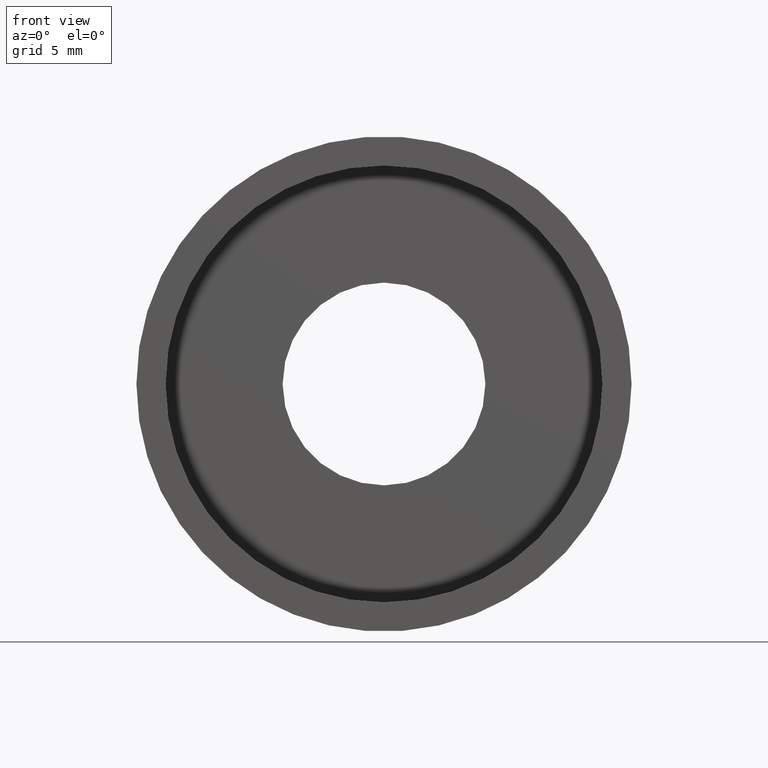
[diagram: clean part render]
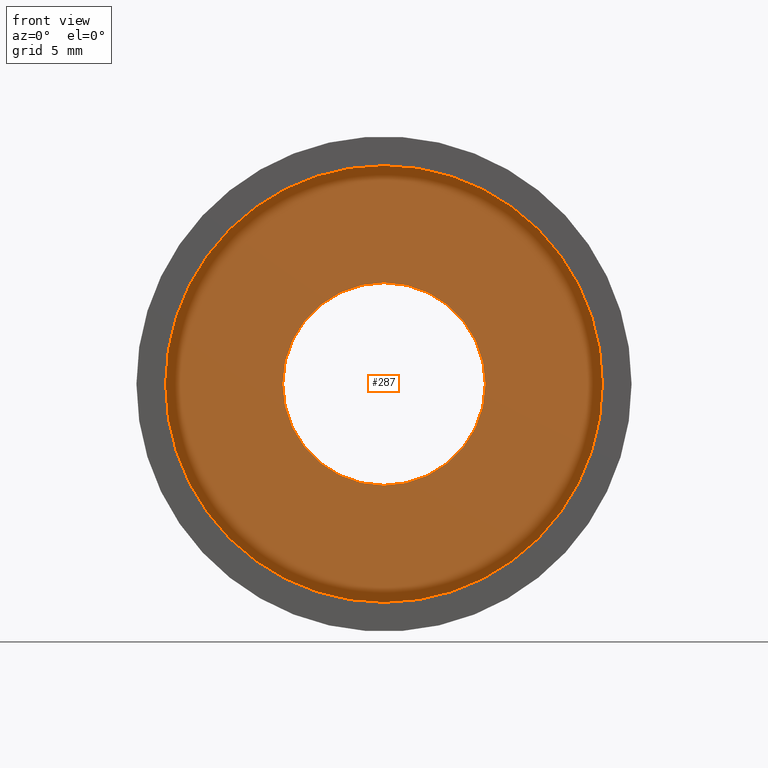
[diagram: same view with one face highlighted and labeled with its STEP entity id]
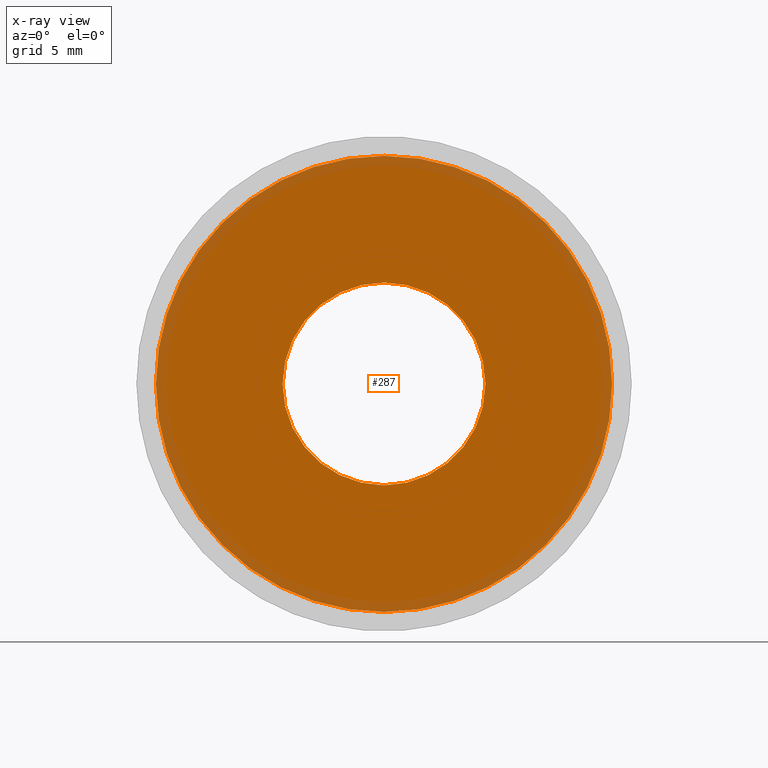
[diagram: x-ray of the same camera — body ghosted, the highlighted face saturated]
A machine part, front view. The second image highlights one B-rep face of the part: STEP entity #287.
The next image is the same camera in x-ray: the body ghosted, the highlighted face saturated — about 10% of this face is hidden behind the body in this view.
In plain terms, the highlighted planar face has unit normal (-0, 1, 0).
Its self-contained STEP definition (entity closure, byte-faithful):
#7 = DIRECTION ( 'NONE',  ( -1.224646799147351000E-016, 1.000000000000000000, -0.0000000000000000000 ) ) ;
#12 = DIRECTION ( 'NONE',  ( -1.000000000000000000, -1.482669637587014800E-016, 0.0000000000000000000 ) ) ;
#14 = DIRECTION ( 'NONE',  ( -1.224646799147351000E-016, 1.000000000000000000, -0.0000000000000000000 ) ) ;
#29 = DIRECTION ( 'NONE',  ( -1.000000000000000000, -1.482669637587014800E-016, 0.0000000000000000000 ) ) ;
#61 = VERTEX_POINT ( 'NONE', #264 ) ;
#70 = ORIENTED_EDGE ( 'NONE', *, *, #297, .F. ) ;
#75 = CARTESIAN_POINT ( 'NONE',  ( 1.394385078907592800E-015, 5.500000000000000000, 0.0000000000000000000 ) ) ;
#81 = CARTESIAN_POINT ( 'NONE',  ( 5.200000000000001100, 5.500000000000000900, 6.368163355566236400E-016 ) ) ;
#120 = EDGE_CURVE ( 'NONE', #61, #360, #493, .T. ) ;
#136 = EDGE_CURVE ( 'NONE', #427, #163, #218, .T. ) ;
#160 = CIRCLE ( 'NONE', #233, 5.200000000000000200 ) ;
#163 = VERTEX_POINT ( 'NONE', #319 ) ;
#174 = CARTESIAN_POINT ( 'NONE',  ( 1.394385078907593200E-015, 5.499999999999996400, 0.0000000000000000000 ) ) ;
#182 = DIRECTION ( 'NONE',  ( -1.224646799147351000E-016, 1.000000000000000000, -0.0000000000000000000 ) ) ;
#195 = CIRCLE ( 'NONE', #587, 11.69999999999999900 ) ;
#218 = CIRCLE ( 'NONE', #222, 11.69999999999999900 ) ;
#219 = DIRECTION ( 'NONE',  ( -1.224646799147351000E-016, 1.000000000000000000, -0.0000000000000000000 ) ) ;
#221 = ORIENTED_EDGE ( 'NONE', *, *, #277, .T. ) ;
#222 = AXIS2_PLACEMENT_3D ( 'NONE', #272, #219, #12 ) ;
#229 = ORIENTED_EDGE ( 'NONE', *, *, #120, .T. ) ;
#233 = AXIS2_PLACEMENT_3D ( 'NONE', #75, #182, #498 ) ;
#243 = EDGE_LOOP ( 'NONE', ( #436, #70 ) ) ;
#264 = CARTESIAN_POINT ( 'NONE',  ( -5.199999999999998400, 5.499999999999999100, 0.0000000000000000000 ) ) ;
#266 = CARTESIAN_POINT ( 'NONE',  ( 1.394385078907592800E-015, 5.500000000000000000, 0.0000000000000000000 ) ) ;
#272 = CARTESIAN_POINT ( 'NONE',  ( 1.394385078907593200E-015, 5.499999999999996400, 0.0000000000000000000 ) ) ;
#275 = PLANE ( 'NONE',  #600 ) ;
#277 = EDGE_CURVE ( 'NONE', #360, #61, #160, .T. ) ;
#281 = FACE_BOUND ( 'NONE', #514, .T. ) ;
#287 = ADVANCED_FACE ( 'NONE', ( #398, #281 ), #275, .F. ) ;
#297 = EDGE_CURVE ( 'NONE', #163, #427, #195, .T. ) ;
#300 = AXIS2_PLACEMENT_3D ( 'NONE', #266, #7, #439 ) ;
#319 = CARTESIAN_POINT ( 'NONE',  ( 11.70000000000000100, 5.499999999999998200, 1.432836755002403100E-015 ) ) ;
#326 = DIRECTION ( 'NONE',  ( -1.224646799147351000E-016, 1.000000000000000000, 0.0000000000000000000 ) ) ;
#360 = VERTEX_POINT ( 'NONE', #81 ) ;
#398 = FACE_OUTER_BOUND ( 'NONE', #243, .T. ) ;
#427 = VERTEX_POINT ( 'NONE', #516 ) ;
#436 = ORIENTED_EDGE ( 'NONE', *, *, #136, .F. ) ;
#439 = DIRECTION ( 'NONE',  ( -1.000000000000000000, -1.668003342285391300E-016, 0.0000000000000000000 ) ) ;
#450 = DIRECTION ( 'NONE',  ( -1.000000000000000000, -1.224646799147351000E-016, 0.0000000000000000000 ) ) ;
#493 = CIRCLE ( 'NONE', #300, 5.200000000000000200 ) ;
#498 = DIRECTION ( 'NONE',  ( -1.000000000000000000, -1.668003342285391300E-016, 0.0000000000000000000 ) ) ;
#514 = EDGE_LOOP ( 'NONE', ( #229, #221 ) ) ;
#516 = CARTESIAN_POINT ( 'NONE',  ( -11.69999999999999800, 5.499999999999994700, 0.0000000000000000000 ) ) ;
#587 = AXIS2_PLACEMENT_3D ( 'NONE', #174, #14, #29 ) ;
#591 = CARTESIAN_POINT ( 'NONE',  ( 5.200000000000001100, 5.500000000000000000, 0.0000000000000000000 ) ) ;
#600 = AXIS2_PLACEMENT_3D ( 'NONE', #591, #326, #450 ) ;